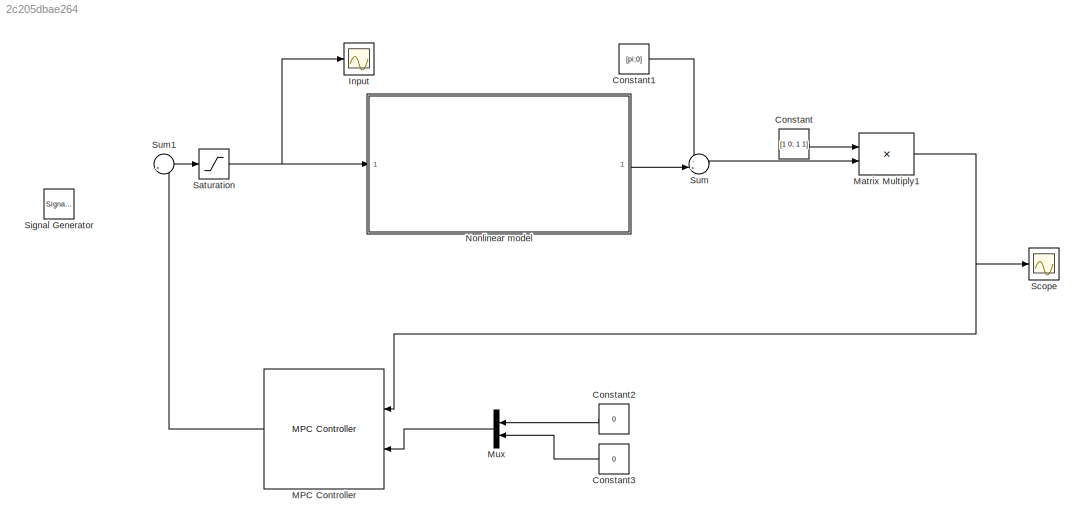
MODEL slx_2c205dbae264
KIND model
CONFIG AbsTol = auto
CONFIG EnableMultiTasking = off
CONFIG FixedStep = auto
CONFIG MaxStep = auto
CONFIG MinStep = auto
CONFIG RelTol = 1e-3
CONFIG SampleTimeConstraint = Unconstrained
CONFIG Solver = VariableStepAuto
CONFIG SolverName = VariableStepAuto
CONFIG StartTime = 0.0
CONFIG StopTime = 30.0
BLOCK [Constant] Constant
  Value = [1 0; 1 1]
BLOCK [Constant] Constant1
  Value = [pi;0]
BLOCK [Constant] Constant2
  Value = 0
BLOCK [Constant] Constant3
  Value = 0
BLOCK [Scope] Input
  Floating = off
  NumInputPorts = 1
  Ports = [1]
  ScopeSpecificationString = Simulink.scopes.TimeScopeBlockCfg('CurrentConfiguration', extmgr.ConfigurationSet(extmgr.Configuration('Core','General UI',true),extmgr.Configuration('Core','Source UI',true),extmgr.Configuration('Sources','WiredSimulink',true,'DataLoggingVariableName','ScopeData2'),extmgr.Configuration('Visuals','Time Domain',true,'SerializedDisplays',{struct('MinYLimReal','-0.08354','MaxYLimReal','0.02318','YLab...<+1395ch>
BLOCK [Reference] MPC Controller  REF=mpclib/MPC Controller  (lib defined in mdl_ae329e0e0455)
  Ports = [2, 1]
  SCDEnableBlockLinearizationSpecification = on
  SourceBlock = mpclib/MPC Controller
  SourceType = MPC
BLOCK [Product] Matrix Multiply1
  InputSameDT = off
  Multiplication = Matrix(*)
  OutDataTypeStr = Inherit: Inherit via internal rule
  Ports = [2, 1]
  RndMeth = Floor
  SaturateOnIntegerOverflow = off
BLOCK [Mux] Mux
  DisplayOption = bar
  Inputs = 2
  Ports = [2, 1]
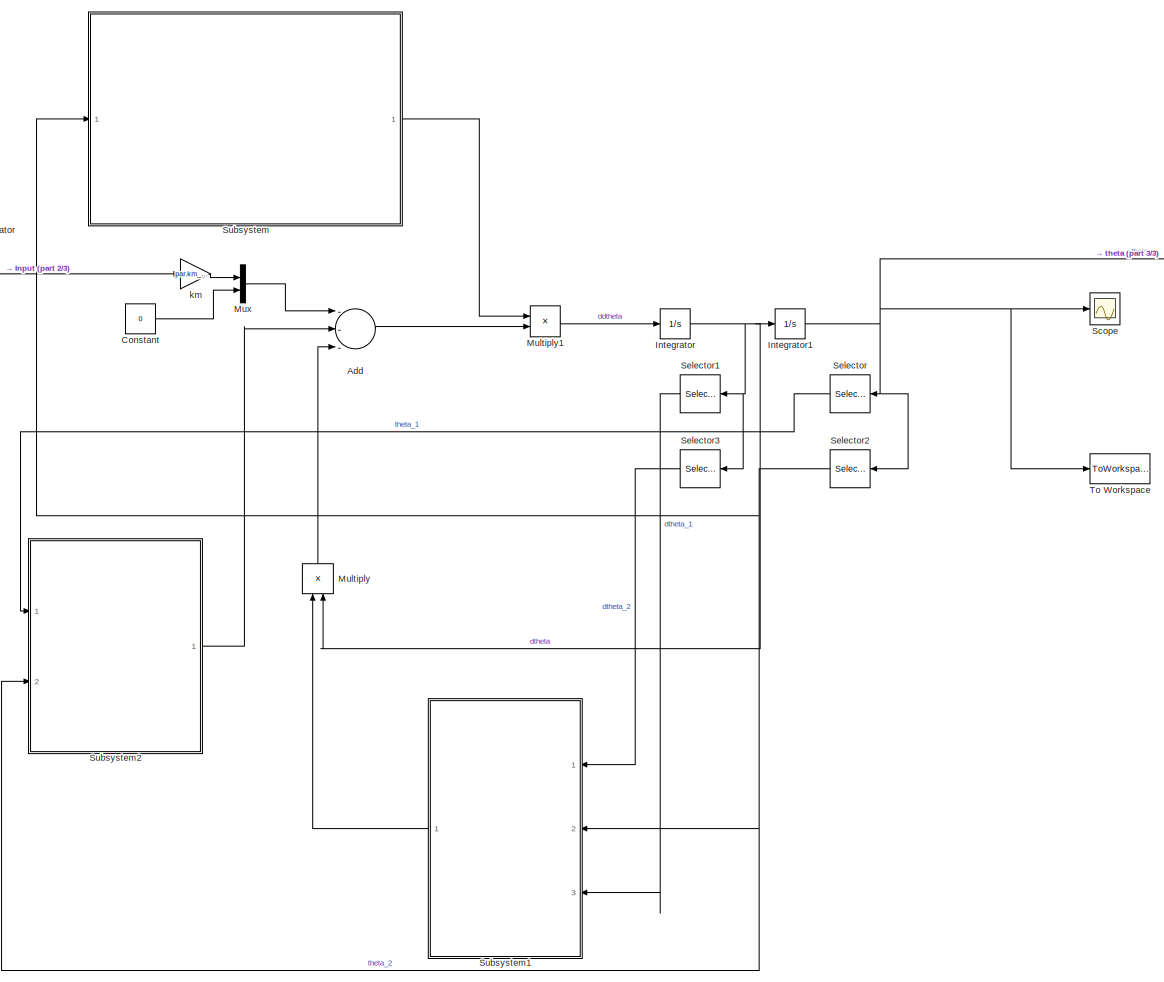
[diagram: Nonlinear model - part 1/3, most of the canvas]
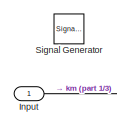
[diagram: Nonlinear model - part 2/3, top left region]
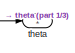
[diagram: Nonlinear model - part 3/3, top right region]
BLOCK [SubSystem] Nonlinear model
  Ports = [1, 1]
  RequestExecContextInheritance = off
BLOCK [Sum] Nonlinear model/Add
  InputSameDT = off
  Inputs = ---
  OutDataTypeStr = Inherit: Inherit via internal rule
  Ports = [3, 1]
  SaturateOnIntegerOverflow = off
BLOCK [Constant] Nonlinear model/Constant
  Value = 0
BLOCK [Inport] Nonlinear model/Input 
  IconDisplay = Port number
BLOCK [Integrator] Nonlinear model/Integrator
  InitialCondition = [0;0]
  Ports = [1, 1]
BLOCK [Integrator] Nonlinear model/Integrator1
  InitialCondition = [7*pi/8;0]
  Ports = [1, 1]
BLOCK [Product] Nonlinear model/Multiply
  InputSameDT = off
  Multiplication = Matrix(*)
  OutDataTypeStr = Inherit: Inherit via internal rule
  Ports = [2, 1]
  RndMeth = Floor
  SaturateOnIntegerOverflow = off
BLOCK [Product] Nonlinear model/Multiply1
  InputSameDT = off
  Multiplication = Matrix(*)
  OutDataTypeStr = Inherit: Inherit via internal rule
  Ports = [2, 1]
  RndMeth = Floor
  SaturateOnIntegerOverflow = off
BLOCK [Mux] Nonlinear model/Mux
  DisplayOption = bar
  Inputs = 2
  Ports = [2, 1]
BLOCK [Scope] Nonlinear model/Scope
  Floating = off
  NumInputPorts = 1
  Ports = [1]
  ScopeSpecificationString = Simulink.scopes.TimeScopeBlockCfg('CurrentConfiguration', extmgr.ConfigurationSet(extmgr.Configuration('Core','General UI',true),extmgr.Configuration('Core','Source UI',true),extmgr.Configuration('Sources','WiredSimulink',true),extmgr.Configuration('Visuals','Time Domain',true,'SerializedDisplays',{struct('MinYLimReal','-0.39425','MaxYLimReal','3.53585','YLabelReal','','MinYLimMag','0.00000','MaxY...<+1365ch>
BLOCK [Selector] Nonlinear model/Selector
  IndexOptions = Index vector (dialog)
  Indices = [1]
  InputPortWidth = 2
  OutputSizes = 1
  Ports = [1, 1]
BLOCK [Selector] Nonlinear model/Selector1
  IndexOptions = Index vector (dialog)
  Indices = [1]
  InputPortWidth = 2
  OutputSizes = 1
  Ports = [1, 1]
BLOCK [Selector] Nonlinear model/Selector2
  IndexOptions = Index vector (dialog)
  Indices = [2]
  InputPortWidth = 2
  OutputSizes = 1
  Ports = [1, 1]
BLOCK [Selector] Nonlinear model/Selector3
  IndexOptions = Index vector (dialog)
  Indices = [2]
  InputPortWidth = 2
  OutputSizes = 1
  Ports = [1, 1]
BLOCK [SignalGenerator] Nonlinear model/Signal Generator
  Amplitude = 0.3
  Commented = on
  Ports = [0, 1]
  WaveForm = square
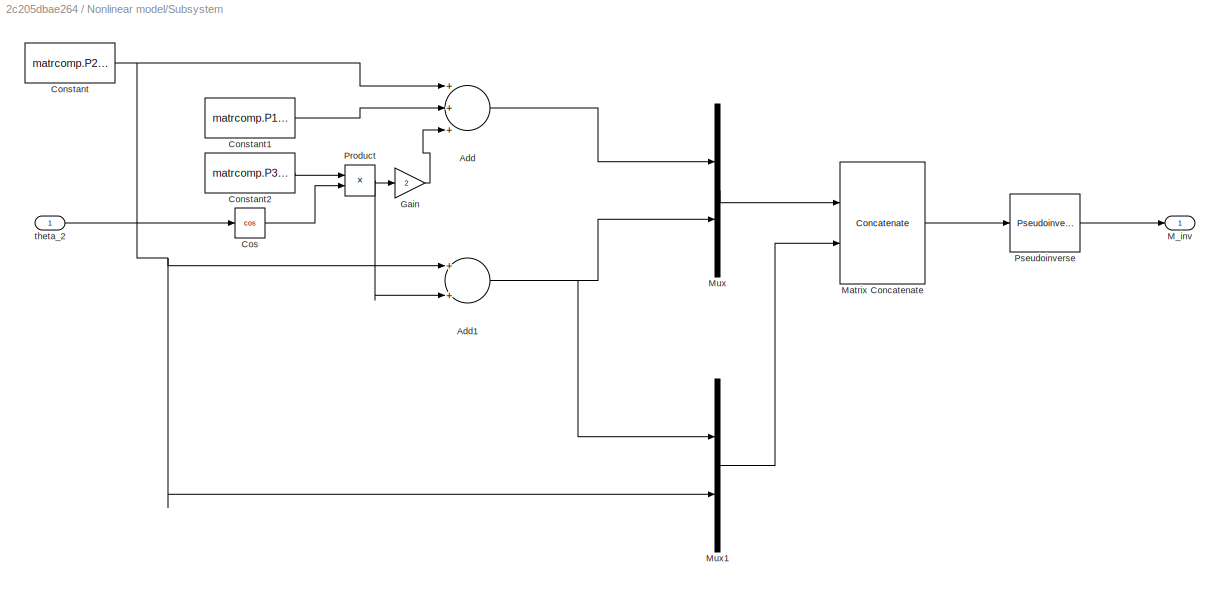
BLOCK [SubSystem] Nonlinear model/Subsystem
  Ports = [1, 1]
  RequestExecContextInheritance = off
BLOCK [Sum] Nonlinear model/Subsystem/Add
  InputSameDT = off
  Inputs = +++
  OutDataTypeStr = Inherit: Inherit via internal rule
  Ports = [3, 1]
  SaturateOnIntegerOverflow = off
BLOCK [Sum] Nonlinear model/Subsystem/Add1
  InputSameDT = off
  OutDataTypeStr = Inherit: Inherit via internal rule
  Ports = [2, 1]
  SaturateOnIntegerOverflow = off
BLOCK [Constant] Nonlinear model/Subsystem/Constant
  Value = matrcomp.P2_est
BLOCK [Constant] Nonlinear model/Subsystem/Constant1
  Value = matrcomp.P1_est
BLOCK [Constant] Nonlinear model/Subsystem/Constant2
  Value = matrcomp.P3_est
BLOCK [Trigonometry] Nonlinear model/Subsystem/Cos
  Operator = cos
  Ports = [1, 1]
BLOCK [Gain] Nonlinear model/Subsystem/Gain
  Gain = 2
  OutDataTypeStr = Inherit: Inherit via internal rule
  ParamDataTypeStr = Inherit: Inherit via internal rule
  SaturateOnIntegerOverflow = off
BLOCK [Outport] Nonlinear model/Subsystem/M_inv
  IconDisplay = Port number
BLOCK [Concatenate] Nonlinear model/Subsystem/Matrix Concatenate
  ConcatenateDimension = 2
  Mode = Multidimensional array
  Ports = [2, 1]
BLOCK [Mux] Nonlinear model/Subsystem/Mux
  DisplayOption = bar
  Inputs = 2
  Ports = [2, 1]
BLOCK [Mux] Nonlinear model/Subsystem/Mux1
  DisplayOption = bar
  Inputs = 2
  Ports = [2, 1]
BLOCK [Product] Nonlinear model/Subsystem/Product
  InputSameDT = off
  OutDataTypeStr = Inherit: Inherit via internal rule
  Ports = [2, 1]
  RndMeth = Floor
  SaturateOnIntegerOverflow = off
BLOCK [Reference] Nonlinear model/Subsystem/Pseudoinverse  REF=dspinverses/Pseudoinverse
  Ports = [1, 1]
  SourceBlock = dspinverses/Pseudoinverse
  SourceType = Pseudoinverse
BLOCK [Inport] Nonlinear model/Subsystem/theta_2 
  IconDisplay = Port number
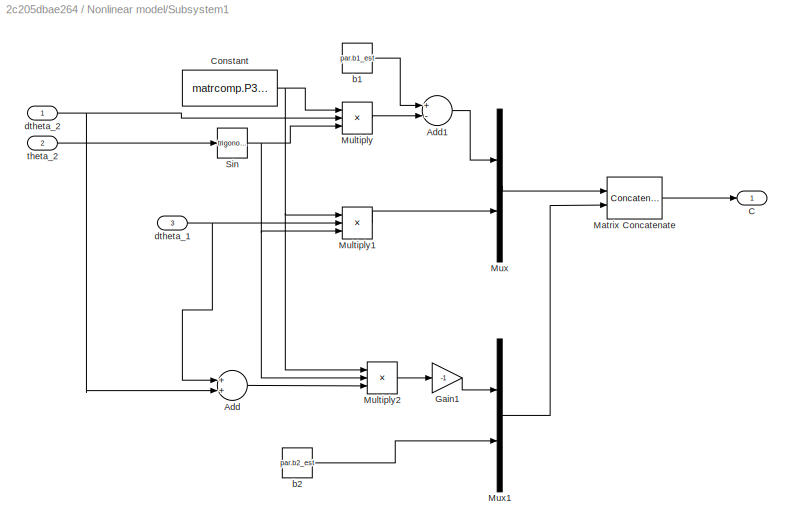
BLOCK [SubSystem] Nonlinear model/Subsystem1
  Ports = [3, 1]
  RequestExecContextInheritance = off
BLOCK [Sum] Nonlinear model/Subsystem1/Add
  InputSameDT = off
  OutDataTypeStr = Inherit: Inherit via internal rule
  Ports = [2, 1]
  SaturateOnIntegerOverflow = off
BLOCK [Sum] Nonlinear model/Subsystem1/Add1
  InputSameDT = off
  Inputs = +-
  OutDataTypeStr = Inherit: Inherit via internal rule
  Ports = [2, 1]
  SaturateOnIntegerOverflow = off
BLOCK [Outport] Nonlinear model/Subsystem1/C
  IconDisplay = Port number
BLOCK [Constant] Nonlinear model/Subsystem1/Constant
  Value = matrcomp.P3_est
BLOCK [Gain] Nonlinear model/Subsystem1/Gain1
  Gain = -1
  OutDataTypeStr = Inherit: Inherit via internal rule
  ParamDataTypeStr = Inherit: Inherit via internal rule
  SaturateOnIntegerOverflow = off
BLOCK [Concatenate] Nonlinear model/Subsystem1/Matrix Concatenate
  ConcatenateDimension = 2
  Mode = Multidimensional array
  Ports = [2, 1]
BLOCK [Product] Nonlinear model/Subsystem1/Multiply
  InputSameDT = off
  Inputs = 3
  OutDataTypeStr = Inherit: Inherit via internal rule
  Ports = [3, 1]
  RndMeth = Floor
  SaturateOnIntegerOverflow = off
BLOCK [Product] Nonlinear model/Subsystem1/Multiply1
  InputSameDT = off
  Inputs = 3
  OutDataTypeStr = Inherit: Inherit via internal rule
  Ports = [3, 1]
  RndMeth = Floor
  SaturateOnIntegerOverflow = off
BLOCK [Product] Nonlinear model/Subsystem1/Multiply2
  InputSameDT = off
  Inputs = 3
  OutDataTypeStr = Inherit: Inherit via internal rule
  Ports = [3, 1]
  RndMeth = Floor
  SaturateOnIntegerOverflow = off
BLOCK [Mux] Nonlinear model/Subsystem1/Mux
  DisplayOption = bar
  Inputs = 2
  Ports = [2, 1]
BLOCK [Mux] Nonlinear model/Subsystem1/Mux1
  DisplayOption = bar
  Inputs = 2
  Ports = [2, 1]
BLOCK [Trigonometry] Nonlinear model/Subsystem1/Sin
  Ports = [1, 1]
BLOCK [Constant] Nonlinear model/Subsystem1/b1
  Value = par.b1_est
BLOCK [Constant] Nonlinear model/Subsystem1/b2
  Value = par.b2_est
BLOCK [Inport] Nonlinear model/Subsystem1/dtheta_1
  IconDisplay = Port number
  Port = 3
BLOCK [Inport] Nonlinear model/Subsystem1/dtheta_2
  IconDisplay = Port number
BLOCK [Inport] Nonlinear model/Subsystem1/theta_2
  IconDisplay = Port number
  Port = 2
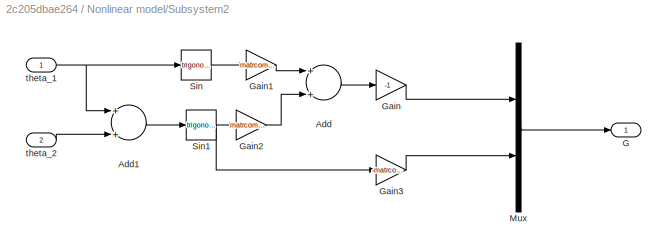
BLOCK [SubSystem] Nonlinear model/Subsystem2
  Ports = [2, 1]
  RequestExecContextInheritance = off
BLOCK [Sum] Nonlinear model/Subsystem2/Add
  InputSameDT = off
  OutDataTypeStr = Inherit: Inherit via internal rule
  Ports = [2, 1]
  SaturateOnIntegerOverflow = off
BLOCK [Sum] Nonlinear model/Subsystem2/Add1
  InputSameDT = off
  OutDataTypeStr = Inherit: Inherit via internal rule
  Ports = [2, 1]
  SaturateOnIntegerOverflow = off
BLOCK [Outport] Nonlinear model/Subsystem2/G
  IconDisplay = Port number
BLOCK [Gain] Nonlinear model/Subsystem2/Gain
  Gain = -1
  OutDataTypeStr = Inherit: Inherit via internal rule
  ParamDataTypeStr = Inherit: Inherit via internal rule
  SaturateOnIntegerOverflow = off
BLOCK [Gain] Nonlinear model/Subsystem2/Gain1
  Gain = matrcomp.g1_est
  OutDataTypeStr = Inherit: Inherit via internal rule
  ParamDataTypeStr = Inherit: Inherit via internal rule
  SaturateOnIntegerOverflow = off
BLOCK [Gain] Nonlinear model/Subsystem2/Gain2
  Gain = matrcomp.g2_est
  OutDataTypeStr = Inherit: Inherit via internal rule
  ParamDataTypeStr = Inherit: Inherit via internal rule
  SaturateOnIntegerOverflow = off
BLOCK [Gain] Nonlinear model/Subsystem2/Gain3
  Gain = -matrcomp.g2_est
  OutDataTypeStr = Inherit: Inherit via internal rule
  ParamDataTypeStr = Inherit: Inherit via internal rule
  SaturateOnIntegerOverflow = off
BLOCK [Mux] Nonlinear model/Subsystem2/Mux
  DisplayOption = bar
  Inputs = 2
  Ports = [2, 1]
BLOCK [Trigonometry] Nonlinear model/Subsystem2/Sin
  Ports = [1, 1]
BLOCK [Trigonometry] Nonlinear model/Subsystem2/Sin1
  Ports = [1, 1]
BLOCK [Inport] Nonlinear model/Subsystem2/theta_1
  IconDisplay = Port number
BLOCK [Inport] Nonlinear model/Subsystem2/theta_2 
  IconDisplay = Port number
  Port = 2
BLOCK [ToWorkspace] Nonlinear model/To Workspace
  FixptAsFi = on
  MaxDataPoints = inf
  Ports = [1]
  SampleTime = -1
  Save2DSignal = 3-D array (concatenate along third dimension)
  SaveFormat = Timeseries
  VariableName = theta_sim_nonlin
BLOCK [Gain] Nonlinear model/km
  Gain = par.km_est
  OutDataTypeStr = Inherit: Inherit via internal rule
  ParamDataTypeStr = Inherit: Inherit via internal rule
  SaturateOnIntegerOverflow = off
BLOCK [Outport] Nonlinear model/theta
  IconDisplay = Port number
BLOCK [Saturate] Saturation
  InputPortMap = u0
  Ports = [1, 1]
BLOCK [Scope] Scope
  Floating = off
  NumInputPorts = 1
  Ports = [1]
  ScopeSpecificationString = Simulink.scopes.TimeScopeBlockCfg('CurrentConfiguration', extmgr.ConfigurationSet(extmgr.Configuration('Core','General UI',true),extmgr.Configuration('Core','Source UI',true),extmgr.Configuration('Sources','WiredSimulink',true,'DataLoggingVariableName','ScopeData1'),extmgr.Configuration('Visuals','Time Domain',true,'SerializedDisplays',{struct('MinYLimReal','-1.73767','MaxYLimReal','1.95637','YLab...<+1469ch>
BLOCK [SignalGenerator] Signal Generator
  Amplitude = 0.2
  Ports = [0, 1]
  Units = rad/sec
  WaveForm = square
BLOCK [Sum] Sum
  IconShape = round
  InputSameDT = off
  Inputs = -+|
  OutDataTypeStr = Inherit: Inherit via internal rule
  Ports = [2, 1]
  SaturateOnIntegerOverflow = off
BLOCK [Sum] Sum1
  IconShape = round
  InputSameDT = off
  Inputs = |++
  OutDataTypeStr = Inherit: Inherit via internal rule
  Ports = [2, 1]
  SaturateOnIntegerOverflow = off
LINE Constant1:1 -> Sum:1
LINE Constant2:1 -> Mux:1
LINE Constant3:1 -> Mux:2
LINE Constant:1 -> Matrix Multiply1:1
LINE MPC Controller:1 -> Sum1:2
NET Matrix Multiply1:1 -> MPC Controller:1, Scope:1
LINE Mux:1 -> MPC Controller:2
LINE Nonlinear model/Add:1 -> Nonlinear model/Multiply1:2
LINE Nonlinear model/Constant:1 -> Nonlinear model/Mux:2
LINE Nonlinear model/Input :1 -> Nonlinear model/km:1
NET Nonlinear model/Integrator1:1 -> Nonlinear model/Scope:1, Nonlinear model/Selector2:1, Nonlinear model/Selector:1, Nonlinear model/To Workspace:1, Nonlinear model/theta:1
NET Nonlinear model/Integrator:1 -> Nonlinear model/Integrator1:1, Nonlinear model/Multiply:2, Nonlinear model/Selector1:1, Nonlinear model/Selector3:1
LINE Nonlinear model/Multiply1:1 -> Nonlinear model/Integrator:1
LINE Nonlinear model/Multiply:1 -> Nonlinear model/Add:3
LINE Nonlinear model/Mux:1 -> Nonlinear model/Add:1
LINE Nonlinear model/Selector1:1 -> Nonlinear model/Subsystem1:3
NET Nonlinear model/Selector2:1 -> Nonlinear model/Subsystem1:2, Nonlinear model/Subsystem2:2, Nonlinear model/Subsystem:1
LINE Nonlinear model/Selector3:1 -> Nonlinear model/Subsystem1:1
LINE Nonlinear model/Selector:1 -> Nonlinear model/Subsystem2:1
NET Nonlinear model/Subsystem/Add1:1 -> Nonlinear model/Subsystem/Mux1:1, Nonlinear model/Subsystem/Mux:2
LINE Nonlinear model/Subsystem/Add:1 -> Nonlinear model/Subsystem/Mux:1
LINE Nonlinear model/Subsystem/Constant1:1 -> Nonlinear model/Subsystem/Add:2
LINE Nonlinear model/Subsystem/Constant2:1 -> Nonlinear model/Subsystem/Product:1
NET Nonlinear model/Subsystem/Constant:1 -> Nonlinear model/Subsystem/Add1:1, Nonlinear model/Subsystem/Add:1, Nonlinear model/Subsystem/Mux1:2
LINE Nonlinear model/Subsystem/Cos:1 -> Nonlinear model/Subsystem/Product:2
LINE Nonlinear model/Subsystem/Gain:1 -> Nonlinear model/Subsystem/Add:3
LINE Nonlinear model/Subsystem/Matrix Concatenate:1 -> Nonlinear model/Subsystem/Pseudoinverse:1
LINE Nonlinear model/Subsystem/Mux1:1 -> Nonlinear model/Subsystem/Matrix Concatenate:2
LINE Nonlinear model/Subsystem/Mux:1 -> Nonlinear model/Subsystem/Matrix Concatenate:1
NET Nonlinear model/Subsystem/Product:1 -> Nonlinear model/Subsystem/Add1:2, Nonlinear model/Subsystem/Gain:1
LINE Nonlinear model/Subsystem/Pseudoinverse:1 -> Nonlinear model/Subsystem/M_inv:1
LINE Nonlinear model/Subsystem/theta_2 :1 -> Nonlinear model/Subsystem/Cos:1
LINE Nonlinear model/Subsystem1/Add1:1 -> Nonlinear model/Subsystem1/Mux:1
LINE Nonlinear model/Subsystem1/Add:1 -> Nonlinear model/Subsystem1/Multiply2:3
NET Nonlinear model/Subsystem1/Constant:1 -> Nonlinear model/Subsystem1/Multiply1:1, Nonlinear model/Subsystem1/Multiply2:1, Nonlinear model/Subsystem1/Multiply:1
LINE Nonlinear model/Subsystem1/Gain1:1 -> Nonlinear model/Subsystem1/Mux1:1
LINE Nonlinear model/Subsystem1/Matrix Concatenate:1 -> Nonlinear model/Subsystem1/C:1
LINE Nonlinear model/Subsystem1/Multiply1:1 -> Nonlinear model/Subsystem1/Mux:2
LINE Nonlinear model/Subsystem1/Multiply2:1 -> Nonlinear model/Subsystem1/Gain1:1
LINE Nonlinear model/Subsystem1/Multiply:1 -> Nonlinear model/Subsystem1/Add1:2
LINE Nonlinear model/Subsystem1/Mux1:1 -> Nonlinear model/Subsystem1/Matrix Concatenate:2
LINE Nonlinear model/Subsystem1/Mux:1 -> Nonlinear model/Subsystem1/Matrix Concatenate:1
NET Nonlinear model/Subsystem1/Sin:1 -> Nonlinear model/Subsystem1/Multiply1:3, Nonlinear model/Subsystem1/Multiply2:2, Nonlinear model/Subsystem1/Multiply:3
LINE Nonlinear model/Subsystem1/b1:1 -> Nonlinear model/Subsystem1/Add1:1
LINE Nonlinear model/Subsystem1/b2:1 -> Nonlinear model/Subsystem1/Mux1:2
NET Nonlinear model/Subsystem1/dtheta_1:1 -> Nonlinear model/Subsystem1/Add:1, Nonlinear model/Subsystem1/Multiply1:2
NET Nonlinear model/Subsystem1/dtheta_2:1 -> Nonlinear model/Subsystem1/Add:2, Nonlinear model/Subsystem1/Multiply:2
LINE Nonlinear model/Subsystem1/theta_2:1 -> Nonlinear model/Subsystem1/Sin:1
LINE Nonlinear model/Subsystem1:1 -> Nonlinear model/Multiply:1
LINE Nonlinear model/Subsystem2/Add1:1 -> Nonlinear model/Subsystem2/Sin1:1
LINE Nonlinear model/Subsystem2/Add:1 -> Nonlinear model/Subsystem2/Gain:1
LINE Nonlinear model/Subsystem2/Gain1:1 -> Nonlinear model/Subsystem2/Add:1
LINE Nonlinear model/Subsystem2/Gain2:1 -> Nonlinear model/Subsystem2/Add:2
LINE Nonlinear model/Subsystem2/Gain3:1 -> Nonlinear model/Subsystem2/Mux:2
LINE Nonlinear model/Subsystem2/Gain:1 -> Nonlinear model/Subsystem2/Mux:1
LINE Nonlinear model/Subsystem2/Mux:1 -> Nonlinear model/Subsystem2/G:1
NET Nonlinear model/Subsystem2/Sin1:1 -> Nonlinear model/Subsystem2/Gain2:1, Nonlinear model/Subsystem2/Gain3:1
LINE Nonlinear model/Subsystem2/Sin:1 -> Nonlinear model/Subsystem2/Gain1:1
NET Nonlinear model/Subsystem2/theta_1:1 -> Nonlinear model/Subsystem2/Add1:1, Nonlinear model/Subsystem2/Sin:1
LINE Nonlinear model/Subsystem2/theta_2 :1 -> Nonlinear model/Subsystem2/Add1:2
LINE Nonlinear model/Subsystem2:1 -> Nonlinear model/Add:2
LINE Nonlinear model/Subsystem:1 -> Nonlinear model/Multiply1:1
LINE Nonlinear model/km:1 -> Nonlinear model/Mux:1
LINE Nonlinear model:1 -> Sum:2
NET Saturation:1 -> Input:1, Nonlinear model:1
LINE Sum1:1 -> Saturation:1
LINE Sum:1 -> Matrix Multiply1:2
note: NET lines group one-source signal fan-out (src -> all destinations, sorted); 1:1 wires keep LINE
